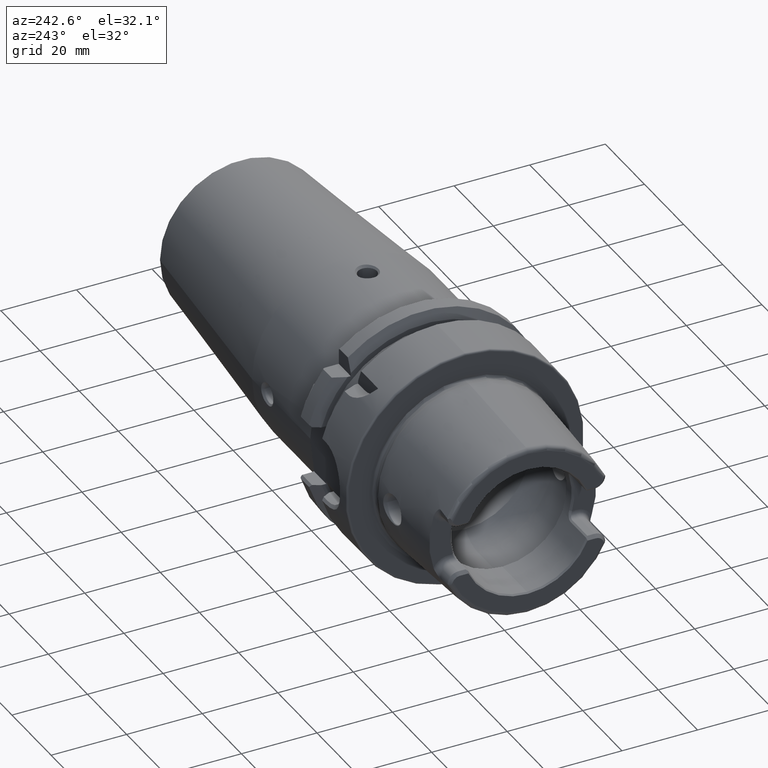
[diagram: clean part render]
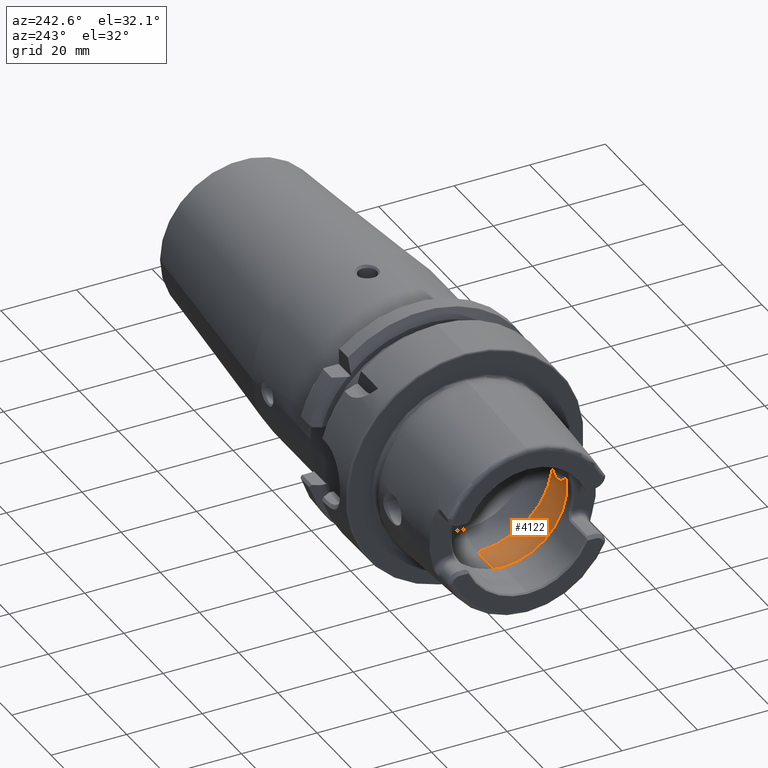
[diagram: same view with one face highlighted and labeled with its STEP entity id]
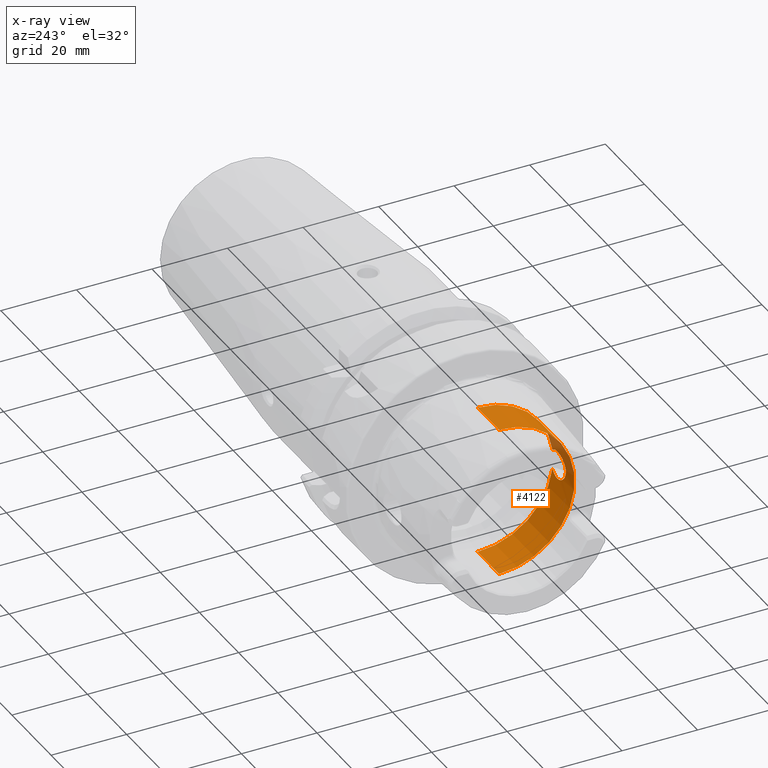
[diagram: x-ray of the same camera — body ghosted, the highlighted face saturated]
A machine part, auxiliary view. The second image highlights one B-rep face of the part: STEP entity #4122.
The next image is the same camera in x-ray: the body ghosted, the highlighted face saturated — about 6% of this face is hidden behind the body in this view.
In plain terms, the highlighted cylindrical surface (partial cylindrical patch) has radius 20 mm, axis along (1, 0, 0).
Its self-contained STEP definition (entity closure, byte-faithful):
#639=CARTESIAN_POINT('',(-6.796840414941E-1,0.E0,0.E0));
#640=DIRECTION('',(-1.E0,0.E0,0.E0));
#641=DIRECTION('',(0.E0,0.E0,-1.E0));
#642=AXIS2_PLACEMENT_3D('',#639,#640,#641);
#791=CARTESIAN_POINT('',(-5.019685039370E-1,-7.874015708661E-1,0.E0));
#792=CARTESIAN_POINT('',(-5.019685039370E-1,-7.874015708661E-1,
-9.925936088082E-3));
#793=CARTESIAN_POINT('',(-5.000106445959E-1,-7.870309940842E-1,
-2.935991372589E-2));
#794=CARTESIAN_POINT('',(-4.912806579868E-1,-7.854412114399E-1,
-5.775882548703E-2));
#795=CARTESIAN_POINT('',(-4.770911424619E-1,-7.830618997100E-1,
-8.375745262049E-2));
#796=CARTESIAN_POINT('',(-4.581578257033E-1,-7.802803366856E-1,
-1.063409174016E-1));
#797=CARTESIAN_POINT('',(-4.349324489261E-1,-7.774947338312E-1,
-1.248628726955E-1));
#798=CARTESIAN_POINT('',(-4.086766968532E-1,-7.751788154182E-1,
-1.383392127415E-1));
#799=CARTESIAN_POINT('',(-3.798455903992E-1,-7.736722009178E-1,
-1.464235007100E-1));
#800=CARTESIAN_POINT('',(-3.504298702615E-1,-7.732577317856E-1,
-1.485671470986E-1));
#801=CARTESIAN_POINT('',(-3.209691006274E-1,-7.739762676486E-1,
-1.448242366235E-1));
#802=CARTESIAN_POINT('',(-2.928023692533E-1,-7.757168360758E-1,
-1.353494148439E-1));
#803=CARTESIAN_POINT('',(-2.664042103441E-1,-7.782975441516E-1,
-1.198210517652E-1));
#804=CARTESIAN_POINT('',(-2.524484910152E-1,-7.800925012547E-1,
-1.072620463708E-1));
#805=CARTESIAN_POINT('',(-2.460629921260E-1,-7.809777292935E-1,
-1.003743998739E-1));
#807=CARTESIAN_POINT('',(-2.460629921260E-1,-7.809777292935E-1,
1.003743998739E-1));
#808=CARTESIAN_POINT('',(-2.524687572930E-1,-7.800896917205E-1,
1.072839063632E-1));
#809=CARTESIAN_POINT('',(-2.664634454070E-1,-7.782896828569E-1,
1.198744937294E-1));
#810=CARTESIAN_POINT('',(-2.929888001290E-1,-7.757011636302E-1,
1.354388361477E-1));
#811=CARTESIAN_POINT('',(-3.211394912884E-1,-7.739699419945E-1,
1.448569698805E-1));
#812=CARTESIAN_POINT('',(-3.505264718735E-1,-7.732575066258E-1,
1.485684582686E-1));
#813=CARTESIAN_POINT('',(-3.799564198778E-1,-7.736761016122E-1,
1.464029508905E-1));
#814=CARTESIAN_POINT('',(-4.087243233155E-1,-7.751827730378E-1,
1.383172113561E-1));
#815=CARTESIAN_POINT('',(-4.349616426028E-1,-7.774979999486E-1,
1.248416878723E-1));
#816=CARTESIAN_POINT('',(-4.581479476636E-1,-7.802792343336E-1,
1.063478401787E-1));
#817=CARTESIAN_POINT('',(-4.770853388601E-1,-7.830609125396E-1,
8.376667860322E-2));
#818=CARTESIAN_POINT('',(-4.912742792944E-1,-7.854401140803E-1,
5.777286605703E-2));
#819=CARTESIAN_POINT('',(-5.000081223002E-1,-7.870305085561E-1,
2.937477565976E-2));
#820=CARTESIAN_POINT('',(-5.019685039370E-1,-7.874015708661E-1,
9.932069995996E-3));
#821=CARTESIAN_POINT('',(-5.019685039370E-1,-7.874015708661E-1,0.E0));
#823=CARTESIAN_POINT('',(-2.460629921260E-1,0.E0,0.E0));
#824=DIRECTION('',(1.E0,0.E0,0.E0));
#825=DIRECTION('',(0.E0,0.E0,1.E0));
#826=AXIS2_PLACEMENT_3D('',#823,#824,#825);
#828=DIRECTION('',(-1.E0,0.E0,0.E0));
#829=VECTOR('',#828,4.336210493681E-1);
#830=CARTESIAN_POINT('',(-2.460629921260E-1,0.E0,7.874015708661E-1));
#831=LINE('',#830,#829);
#832=DIRECTION('',(-1.E0,0.E0,0.E0));
#833=VECTOR('',#832,4.336210493681E-1);
#834=CARTESIAN_POINT('',(-2.460629921260E-1,0.E0,-7.874015708661E-1));
#835=LINE('',#834,#833);
#836=CARTESIAN_POINT('',(-2.460629921260E-1,0.E0,0.E0));
#837=DIRECTION('',(1.E0,0.E0,0.E0));
#838=DIRECTION('',(0.E0,-9.918417211620E-1,-1.274754884772E-1));
#839=AXIS2_PLACEMENT_3D('',#836,#837,#838);
#2818=CARTESIAN_POINT('',(-6.796840414941E-1,0.E0,-7.874015708661E-1));
#2819=CARTESIAN_POINT('',(-6.796840414941E-1,0.E0,7.874015708661E-1));
#2820=VERTEX_POINT('',#2818);
#2821=VERTEX_POINT('',#2819);
#2826=CARTESIAN_POINT('',(-2.460629921260E-1,0.E0,-7.874015708661E-1));
#2827=VERTEX_POINT('',#2826);
#2828=CARTESIAN_POINT('',(-2.460629921260E-1,0.E0,7.874015708661E-1));
#2829=VERTEX_POINT('',#2828);
#3066=VERTEX_POINT('',#791);
#3067=VERTEX_POINT('',#805);
#3068=VERTEX_POINT('',#807);
#4108=CARTESIAN_POINT('',(0.E0,0.E0,0.E0));
#4109=DIRECTION('',(1.E0,0.E0,0.E0));
#4110=DIRECTION('',(0.E0,0.E0,1.E0));
#4111=AXIS2_PLACEMENT_3D('',#4108,#4109,#4110);
#4112=CYLINDRICAL_SURFACE('',#4111,7.874015708661E-1);
#4113=ORIENTED_EDGE('',*,*,#4006,.F.);
#4114=ORIENTED_EDGE('',*,*,#4066,.F.);
#4115=ORIENTED_EDGE('',*,*,#4102,.F.);
#4116=ORIENTED_EDGE('',*,*,#3971,.T.);
#4117=ORIENTED_EDGE('',*,*,#3939,.F.);
#4118=ORIENTED_EDGE('',*,*,#3968,.F.);
#4119=ORIENTED_EDGE('',*,*,#4096,.F.);
#4120=EDGE_LOOP('',(#4113,#4114,#4115,#4116,#4117,#4118,#4119));
#4121=FACE_OUTER_BOUND('',#4120,.F.);
#4122=ADVANCED_FACE('',(#4121),#4112,.F.);
#643=CIRCLE('',#642,7.874015708661E-1);
#806=B_SPLINE_CURVE_WITH_KNOTS('',3,(#791,#792,#793,#794,#795,#796,#797,#798,
#799,#800,#801,#802,#803,#804,#805),.UNSPECIFIED.,.F.,.F.,(4,1,1,1,1,1,1,1,1,1,
1,1,4),(0.E0,8.333333333333E-2,1.666666666667E-1,2.5E-1,3.333333333333E-1,
4.166666666667E-1,5.E-1,5.833333333333E-1,6.666666666667E-1,7.5E-1,
8.333333333333E-1,9.166666666667E-1,1.E0),.UNSPECIFIED.);
#822=B_SPLINE_CURVE_WITH_KNOTS('',3,(#807,#808,#809,#810,#811,#812,#813,#814,
#815,#816,#817,#818,#819,#820,#821),.UNSPECIFIED.,.F.,.F.,(4,1,1,1,1,1,1,1,1,1,
1,1,4),(0.E0,8.333333333333E-2,1.666666666667E-1,2.5E-1,3.333333333333E-1,
4.166666666667E-1,5.E-1,5.833333333333E-1,6.666666666667E-1,7.5E-1,
8.333333333333E-1,9.166666666667E-1,1.E0),.UNSPECIFIED.);
#827=CIRCLE('',#826,7.874015708661E-1);
#840=CIRCLE('',#839,7.874015708661E-1);
#3939=EDGE_CURVE('',#2820,#2821,#643,.T.);
#3968=EDGE_CURVE('',#2827,#2820,#835,.T.);
#3971=EDGE_CURVE('',#2829,#2821,#831,.T.);
#4006=EDGE_CURVE('',#3066,#3067,#806,.T.);
#4066=EDGE_CURVE('',#3068,#3066,#822,.T.);
#4096=EDGE_CURVE('',#3067,#2827,#840,.T.);
#4102=EDGE_CURVE('',#2829,#3068,#827,.T.);